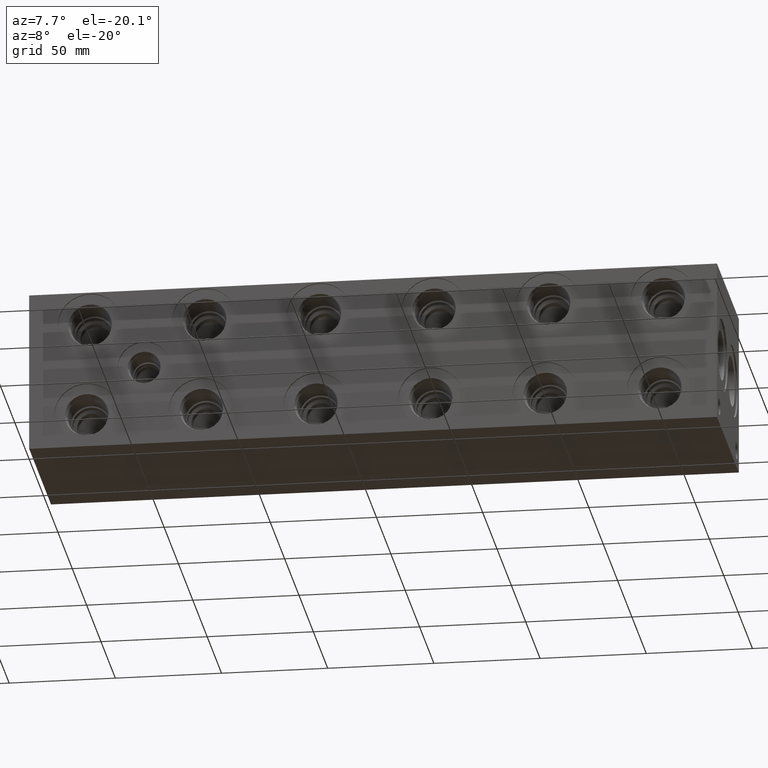
[diagram: clean part render]
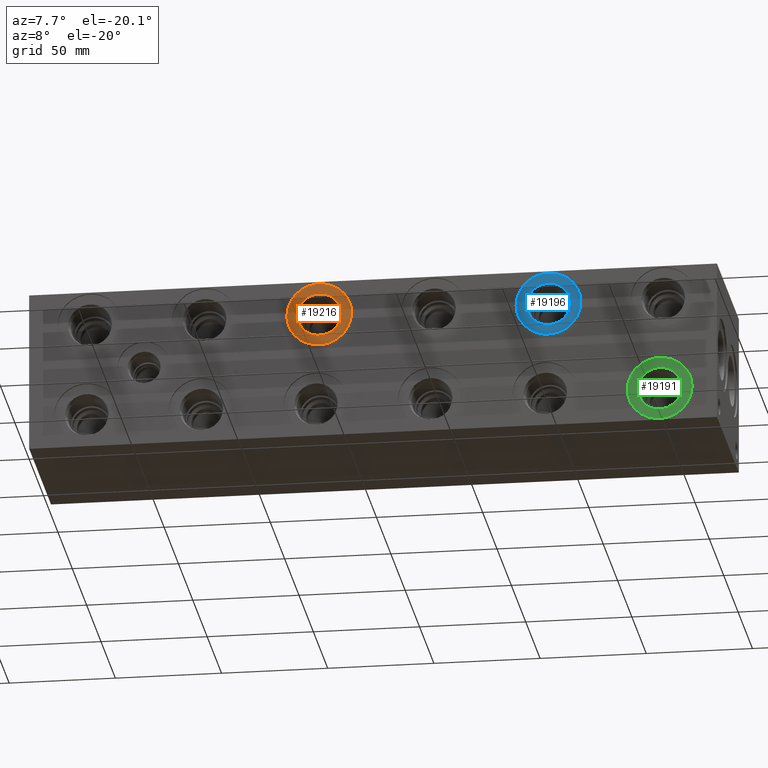
[diagram: same view with three faces highlighted in distinct colors, each labeled with its STEP entity id]
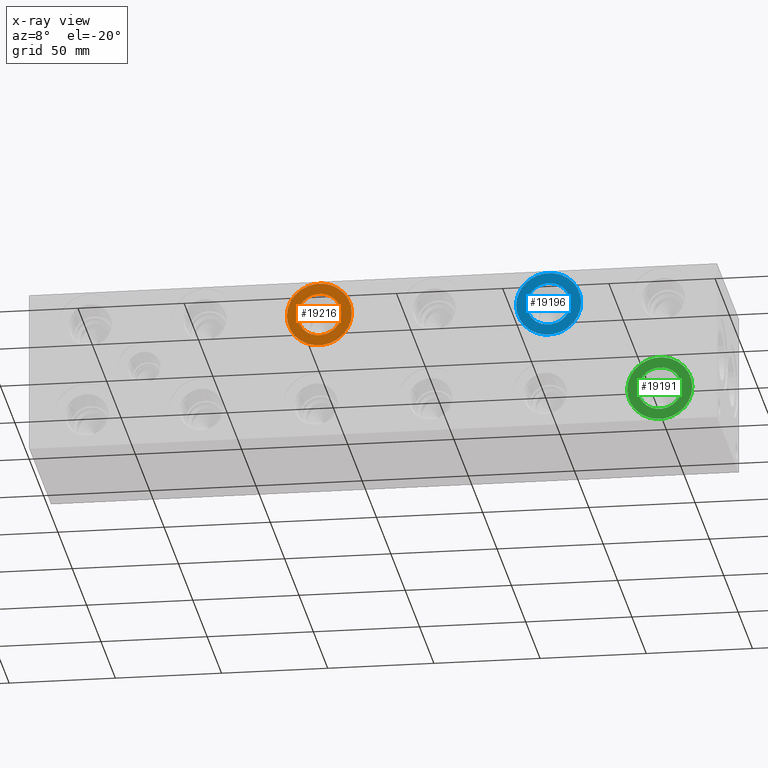
[diagram: x-ray of the same camera — body ghosted, the three highlighted faces saturated]
A machine part, auxiliary view with three faces highlighted in distinct colors.
The next image is the same camera in x-ray (body ghosted, the three faces saturated) — at least one of them is partly hidden behind the body in this view.
Their STEP definitions:

[orange] entity #19216 — the highlighted planar face has unit normal (0, 1, 0).
#701=CIRCLE('',#20396,15.3162);
#702=CIRCLE('',#20397,15.3162);
#703=CIRCLE('',#20399,10.2997);
#704=CIRCLE('',#20400,10.2997);
#1075=FACE_BOUND('',#3832,.T.);
#2699=FACE_OUTER_BOUND('',#3831,.T.);
#3831=EDGE_LOOP('',(#16306,#16307));
#3832=EDGE_LOOP('',(#16308,#16309));
#8893=VERTEX_POINT('',#33077);
#8894=VERTEX_POINT('',#33079);
#8895=VERTEX_POINT('',#33083);
#8896=VERTEX_POINT('',#33084);
#11470=EDGE_CURVE('',#8893,#8894,#701,.T.);
#11471=EDGE_CURVE('',#8894,#8893,#702,.T.);
#11472=EDGE_CURVE('',#8895,#8896,#703,.T.);
#11473=EDGE_CURVE('',#8896,#8895,#704,.T.);
#16306=ORIENTED_EDGE('',*,*,#11471,.F.);
#16307=ORIENTED_EDGE('',*,*,#11470,.F.);
#16308=ORIENTED_EDGE('',*,*,#11472,.T.);
#16309=ORIENTED_EDGE('',*,*,#11473,.T.);
#17726=PLANE('',#20398);
#19216=ADVANCED_FACE('',(#2699,#1075),#17726,.F.);
#20396=AXIS2_PLACEMENT_3D('',#33080,#24248,#24249);
#20397=AXIS2_PLACEMENT_3D('',#33081,#24250,#24251);
#20398=AXIS2_PLACEMENT_3D('',#33082,#24252,#24253);
#20399=AXIS2_PLACEMENT_3D('',#33085,#24254,#24255);
#20400=AXIS2_PLACEMENT_3D('',#33086,#24256,#24257);
#24248=DIRECTION('center_axis',(0.,1.,0.));
#24249=DIRECTION('ref_axis',(1.,0.,0.));
#24250=DIRECTION('center_axis',(0.,1.,0.));
#24251=DIRECTION('ref_axis',(1.,0.,0.));
#24252=DIRECTION('center_axis',(0.,1.,0.));
#24253=DIRECTION('ref_axis',(0.,0.,1.));
#24254=DIRECTION('center_axis',(0.,1.,0.));
#24255=DIRECTION('ref_axis',(1.,0.,0.));
#24256=DIRECTION('center_axis',(0.,1.,0.));
#24257=DIRECTION('ref_axis',(1.,0.,0.));
#33077=CARTESIAN_POINT('',(121.2088,0.7874,60.325));
#33079=CARTESIAN_POINT('',(151.8412,0.7874,60.325));
#33080=CARTESIAN_POINT('Origin',(136.525,0.7874,60.325));
#33081=CARTESIAN_POINT('Origin',(136.525,0.7874,60.325));
#33082=CARTESIAN_POINT('Origin',(146.8247,0.7874,60.325));
#33083=CARTESIAN_POINT('',(146.8247,0.7874,60.325));
#33084=CARTESIAN_POINT('',(126.2253,0.7874,60.325));
#33085=CARTESIAN_POINT('Origin',(136.525,0.7874,60.325));
#33086=CARTESIAN_POINT('Origin',(136.525,0.7874,60.325));

[blue] entity #19196 — the highlighted planar face has unit normal (0, 1, 0).
#665=CIRCLE('',#20340,15.3162);
#666=CIRCLE('',#20341,15.3162);
#667=CIRCLE('',#20343,10.2997);
#668=CIRCLE('',#20344,10.2997);
#1071=FACE_BOUND('',#3808,.T.);
#2679=FACE_OUTER_BOUND('',#3807,.T.);
#3807=EDGE_LOOP('',(#16198,#16199));
#3808=EDGE_LOOP('',(#16200,#16201));
#8857=VERTEX_POINT('',#32969);
#8858=VERTEX_POINT('',#32971);
#8859=VERTEX_POINT('',#32975);
#8860=VERTEX_POINT('',#32976);
#11418=EDGE_CURVE('',#8857,#8858,#665,.T.);
#11419=EDGE_CURVE('',#8858,#8857,#666,.T.);
#11420=EDGE_CURVE('',#8859,#8860,#667,.T.);
#11421=EDGE_CURVE('',#8860,#8859,#668,.T.);
#16198=ORIENTED_EDGE('',*,*,#11419,.F.);
#16199=ORIENTED_EDGE('',*,*,#11418,.F.);
#16200=ORIENTED_EDGE('',*,*,#11420,.T.);
#16201=ORIENTED_EDGE('',*,*,#11421,.T.);
#17722=PLANE('',#20342);
#19196=ADVANCED_FACE('',(#2679,#1071),#17722,.F.);
#20340=AXIS2_PLACEMENT_3D('',#32972,#24120,#24121);
#20341=AXIS2_PLACEMENT_3D('',#32973,#24122,#24123);
#20342=AXIS2_PLACEMENT_3D('',#32974,#24124,#24125);
#20343=AXIS2_PLACEMENT_3D('',#32977,#24126,#24127);
#20344=AXIS2_PLACEMENT_3D('',#32978,#24128,#24129);
#24120=DIRECTION('center_axis',(0.,1.,0.));
#24121=DIRECTION('ref_axis',(1.,0.,0.));
#24122=DIRECTION('center_axis',(0.,1.,0.));
#24123=DIRECTION('ref_axis',(1.,0.,0.));
#24124=DIRECTION('center_axis',(0.,1.,0.));
#24125=DIRECTION('ref_axis',(0.,0.,1.));
#24126=DIRECTION('center_axis',(0.,1.,0.));
#24127=DIRECTION('ref_axis',(1.,0.,0.));
#24128=DIRECTION('center_axis',(0.,1.,0.));
#24129=DIRECTION('ref_axis',(1.,0.,0.));
#32969=CARTESIAN_POINT('',(229.1588,0.7874,60.325));
#32971=CARTESIAN_POINT('',(259.7912,0.7874,60.325));
#32972=CARTESIAN_POINT('Origin',(244.475,0.7874,60.325));
#32973=CARTESIAN_POINT('Origin',(244.475,0.7874,60.325));
#32974=CARTESIAN_POINT('Origin',(254.7747,0.7874,60.325));
#32975=CARTESIAN_POINT('',(254.7747,0.7874,60.325));
#32976=CARTESIAN_POINT('',(234.1753,0.7874,60.325));
#32977=CARTESIAN_POINT('Origin',(244.475,0.7874,60.325));
#32978=CARTESIAN_POINT('Origin',(244.475,0.7874,60.325));

[green] entity #19191 — the highlighted planar face has unit normal (0, 1, 0).
#656=CIRCLE('',#20326,15.3162);
#657=CIRCLE('',#20327,15.3162);
#658=CIRCLE('',#20329,10.2997);
#659=CIRCLE('',#20330,10.2997);
#1070=FACE_BOUND('',#3802,.T.);
#2674=FACE_OUTER_BOUND('',#3801,.T.);
#3801=EDGE_LOOP('',(#16171,#16172));
#3802=EDGE_LOOP('',(#16173,#16174));
#8848=VERTEX_POINT('',#32942);
#8849=VERTEX_POINT('',#32944);
#8850=VERTEX_POINT('',#32948);
#8851=VERTEX_POINT('',#32949);
#11405=EDGE_CURVE('',#8848,#8849,#656,.T.);
#11406=EDGE_CURVE('',#8849,#8848,#657,.T.);
#11407=EDGE_CURVE('',#8850,#8851,#658,.T.);
#11408=EDGE_CURVE('',#8851,#8850,#659,.T.);
#16171=ORIENTED_EDGE('',*,*,#11406,.F.);
#16172=ORIENTED_EDGE('',*,*,#11405,.F.);
#16173=ORIENTED_EDGE('',*,*,#11407,.T.);
#16174=ORIENTED_EDGE('',*,*,#11408,.T.);
#17721=PLANE('',#20328);
#19191=ADVANCED_FACE('',(#2674,#1070),#17721,.F.);
#20326=AXIS2_PLACEMENT_3D('',#32945,#24088,#24089);
#20327=AXIS2_PLACEMENT_3D('',#32946,#24090,#24091);
#20328=AXIS2_PLACEMENT_3D('',#32947,#24092,#24093);
#20329=AXIS2_PLACEMENT_3D('',#32950,#24094,#24095);
#20330=AXIS2_PLACEMENT_3D('',#32951,#24096,#24097);
#24088=DIRECTION('center_axis',(0.,1.,0.));
#24089=DIRECTION('ref_axis',(1.,0.,0.));
#24090=DIRECTION('center_axis',(0.,1.,0.));
#24091=DIRECTION('ref_axis',(1.,0.,0.));
#24092=DIRECTION('center_axis',(0.,1.,0.));
#24093=DIRECTION('ref_axis',(0.,0.,1.));
#24094=DIRECTION('center_axis',(0.,1.,0.));
#24095=DIRECTION('ref_axis',(1.,0.,0.));
#24096=DIRECTION('center_axis',(0.,1.,0.));
#24097=DIRECTION('ref_axis',(1.,0.,0.));
#32942=CARTESIAN_POINT('',(281.5336,0.7874,15.875));
#32944=CARTESIAN_POINT('',(312.166,0.7874,15.875));
#32945=CARTESIAN_POINT('Origin',(296.8498,0.7874,15.875));
#32946=CARTESIAN_POINT('Origin',(296.8498,0.7874,15.875));
#32947=CARTESIAN_POINT('Origin',(307.1495,0.7874,15.875));
#32948=CARTESIAN_POINT('',(307.1495,0.7874,15.875));
#32949=CARTESIAN_POINT('',(286.5501,0.787399999999999,15.875));
#32950=CARTESIAN_POINT('Origin',(296.8498,0.7874,15.875));
#32951=CARTESIAN_POINT('Origin',(296.8498,0.7874,15.875));